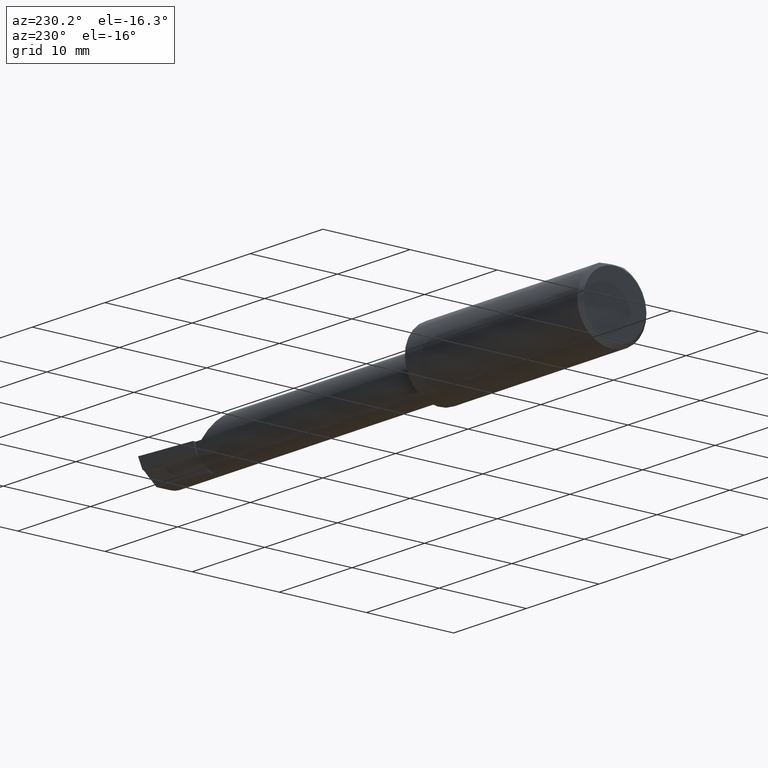
[diagram: clean part render]
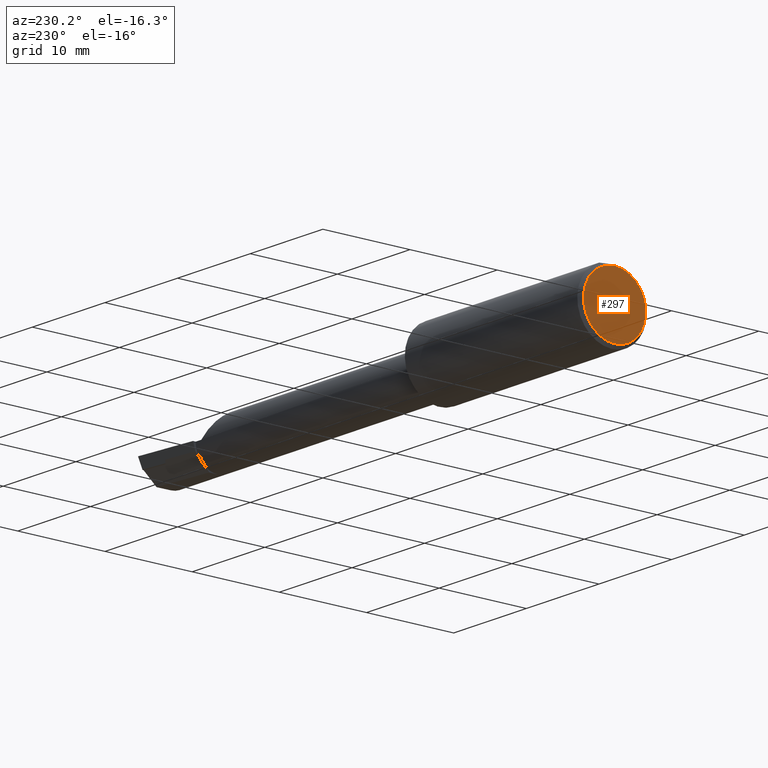
[diagram: same view with one face highlighted and labeled with its STEP entity id]
A machine part, auxiliary view. The second image highlights one B-rep face of the part: STEP entity #297.
In plain terms, the highlighted planar face has unit normal (1, 0, 0).
Its self-contained STEP definition (entity closure, byte-faithful):
#30 = AXIS2_PLACEMENT_3D ( 'NONE', #410, #403, #1166 ) ;
#192 = CARTESIAN_POINT ( 'NONE',  ( 0.000000000000000000, 0.000000000000000000, -3.583940000000000570 ) ) ;
#203 = EDGE_CURVE ( 'NONE', #929, #215, #321, .T. ) ;
#215 = VERTEX_POINT ( 'NONE', #732 ) ;
#269 = DIRECTION ( 'NONE',  ( -1.000000000000000000, -0.000000000000000000, -0.000000000000000000 ) ) ;
#297 = ADVANCED_FACE ( 'NONE', ( #1189 ), #441, .F. ) ;
#321 = CIRCLE ( 'NONE', #30, 3.583940000000000570 ) ;
#348 = DIRECTION ( 'NONE',  ( 0.000000000000000000, 0.000000000000000000, -1.000000000000000000 ) ) ;
#403 = DIRECTION ( 'NONE',  ( -1.000000000000000000, -0.000000000000000000, -0.000000000000000000 ) ) ;
#410 = CARTESIAN_POINT ( 'NONE',  ( 0.000000000000000000, 0.000000000000000000, 0.000000000000000000 ) ) ;
#441 = PLANE ( 'NONE',  #1048 ) ;
#552 = EDGE_CURVE ( 'NONE', #215, #929, #1234, .T. ) ;
#655 = DIRECTION ( 'NONE',  ( 0.000000000000000000, 0.000000000000000000, -1.000000000000000000 ) ) ;
#732 = CARTESIAN_POINT ( 'NONE',  ( 0.000000000000000000, 4.622355864573735845E-16, 3.583940000000000570 ) ) ;
#749 = EDGE_LOOP ( 'NONE', ( #1076, #847 ) ) ;
#847 = ORIENTED_EDGE ( 'NONE', *, *, #552, .T. ) ;
#916 = AXIS2_PLACEMENT_3D ( 'NONE', #1124, #269, #655 ) ;
#929 = VERTEX_POINT ( 'NONE', #192 ) ;
#1048 = AXIS2_PLACEMENT_3D ( 'NONE', #1112, #1204, #348 ) ;
#1076 = ORIENTED_EDGE ( 'NONE', *, *, #203, .T. ) ;
#1112 = CARTESIAN_POINT ( 'NONE',  ( 0.000000000000000000, 0.000000000000000000, 0.000000000000000000 ) ) ;
#1124 = CARTESIAN_POINT ( 'NONE',  ( 0.000000000000000000, 0.000000000000000000, 0.000000000000000000 ) ) ;
#1166 = DIRECTION ( 'NONE',  ( 0.000000000000000000, 0.000000000000000000, -1.000000000000000000 ) ) ;
#1189 = FACE_OUTER_BOUND ( 'NONE', #749, .T. ) ;
#1204 = DIRECTION ( 'NONE',  ( 1.000000000000000000, 0.000000000000000000, 0.000000000000000000 ) ) ;
#1234 = CIRCLE ( 'NONE', #916, 3.583940000000000570 ) ;